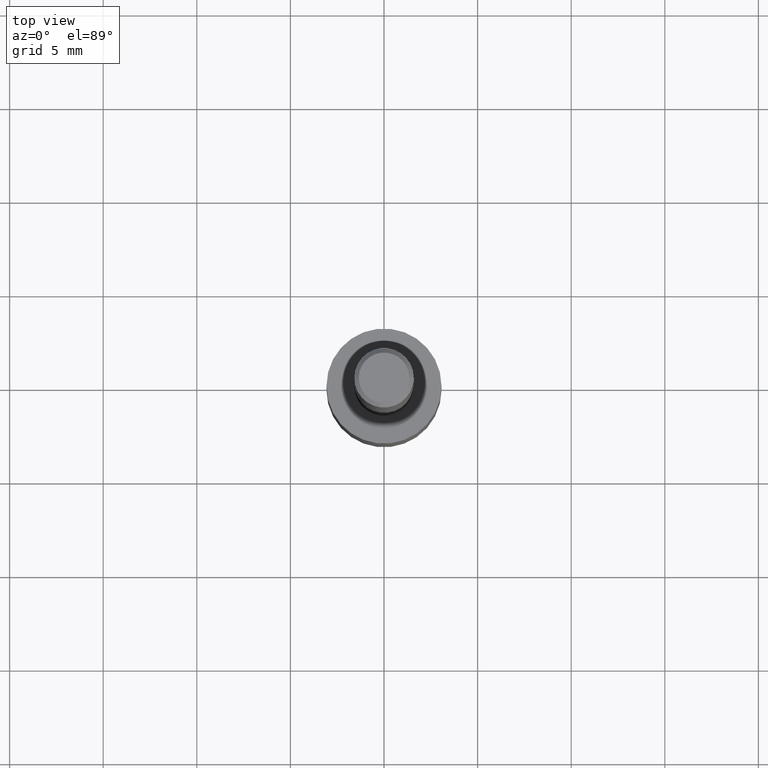
[diagram: clean part render]
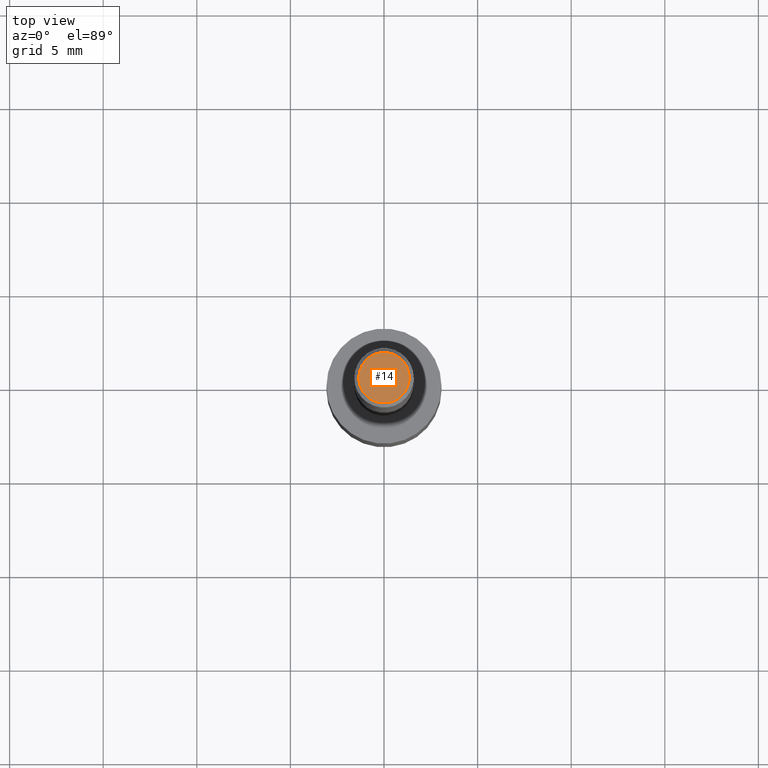
[diagram: same view with one face highlighted and labeled with its STEP entity id]
A machine part, top view. The second image highlights one B-rep face of the part: STEP entity #14.
In plain terms, the highlighted planar face has unit normal (0, -0, -1).
Its self-contained STEP definition (entity closure, byte-faithful):
#10 = ORIENTED_EDGE ( 'NONE', *, *, #84, .T. ) ;
#14 = ADVANCED_FACE ( 'NONE', ( #269 ), #81, .F. ) ;
#19 = AXIS2_PLACEMENT_3D ( 'NONE', #34, #192, #58 ) ;
#26 = AXIS2_PLACEMENT_3D ( 'NONE', #141, #242, #82 ) ;
#34 = CARTESIAN_POINT ( 'NONE',  ( -3.743544432386672853E-50, 5.344789307371238476E-36, 1.530808498934197599E-21 ) ) ;
#51 = CARTESIAN_POINT ( 'NONE',  ( 0.05312499999999999861, -4.129888592719939842E-16, 3.061617000609493422E-21 ) ) ;
#58 = DIRECTION ( 'NONE',  ( -1.000000000000000000, 6.982962677686265922E-15, -4.876176775795935793E-29 ) ) ;
#60 = CIRCLE ( 'NONE', #26, 0.05312499999999999861 ) ;
#81 = PLANE ( 'NONE',  #19 ) ;
#82 = DIRECTION ( 'NONE',  ( 1.000000000000000000, -6.982962677686266711E-15, 4.876176628004948512E-29 ) ) ;
#84 = EDGE_CURVE ( 'NONE', #107, #105, #216, .T. ) ;
#92 = EDGE_LOOP ( 'NONE', ( #10, #133 ) ) ;
#105 = VERTEX_POINT ( 'NONE', #51 ) ;
#107 = VERTEX_POINT ( 'NONE', #193 ) ;
#133 = ORIENTED_EDGE ( 'NONE', *, *, #262, .T. ) ;
#141 = CARTESIAN_POINT ( 'NONE',  ( -7.487088864773345706E-50, 1.068957861474247695E-35, 3.061616997868395197E-21 ) ) ;
#181 = AXIS2_PLACEMENT_3D ( 'NONE', #254, #230, #314 ) ;
#192 = DIRECTION ( 'NONE',  ( 2.438088387897960049E-29, -3.491481338843145188E-15, -1.000000000000000000 ) ) ;
#193 = CARTESIAN_POINT ( 'NONE',  ( -0.05312499999999999861, 3.873362110279099094E-16, 3.061616995216862494E-21 ) ) ;
#216 = CIRCLE ( 'NONE', #181, 0.05312499999999999861 ) ;
#230 = DIRECTION ( 'NONE',  ( -2.445468806185136597E-29, 3.491481338843145583E-15, 1.000000000000000000 ) ) ;
#242 = DIRECTION ( 'NONE',  ( -2.445468806185136597E-29, 3.491481338843145583E-15, 1.000000000000000000 ) ) ;
#254 = CARTESIAN_POINT ( 'NONE',  ( -7.487088864773345706E-50, 1.068957861474247695E-35, 3.061616997868395197E-21 ) ) ;
#262 = EDGE_CURVE ( 'NONE', #105, #107, #60, .T. ) ;
#269 = FACE_OUTER_BOUND ( 'NONE', #92, .T. ) ;
#314 = DIRECTION ( 'NONE',  ( 1.000000000000000000, -6.982962677686266711E-15, 4.876176628004948512E-29 ) ) ;